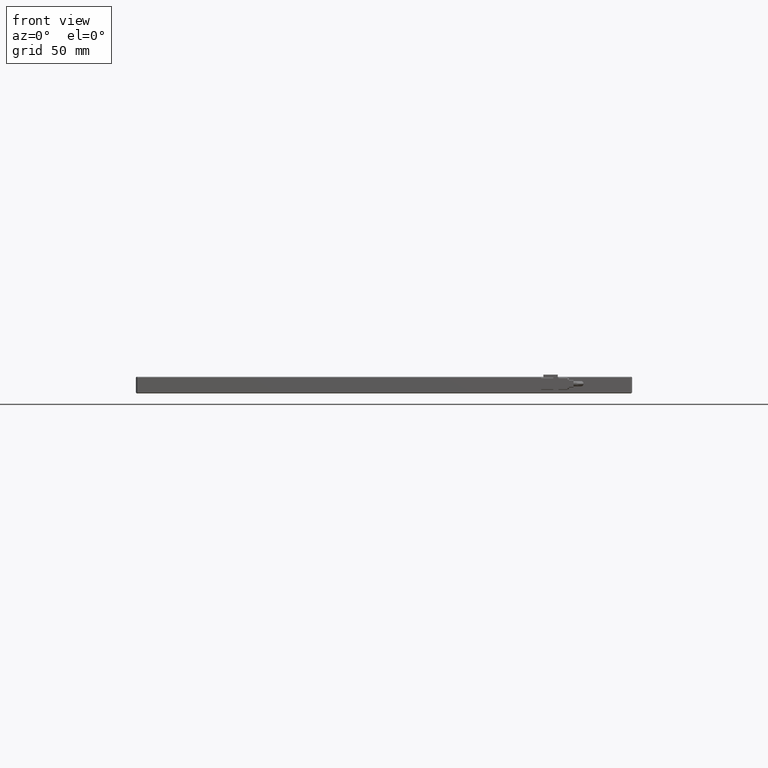
[diagram: clean part render]
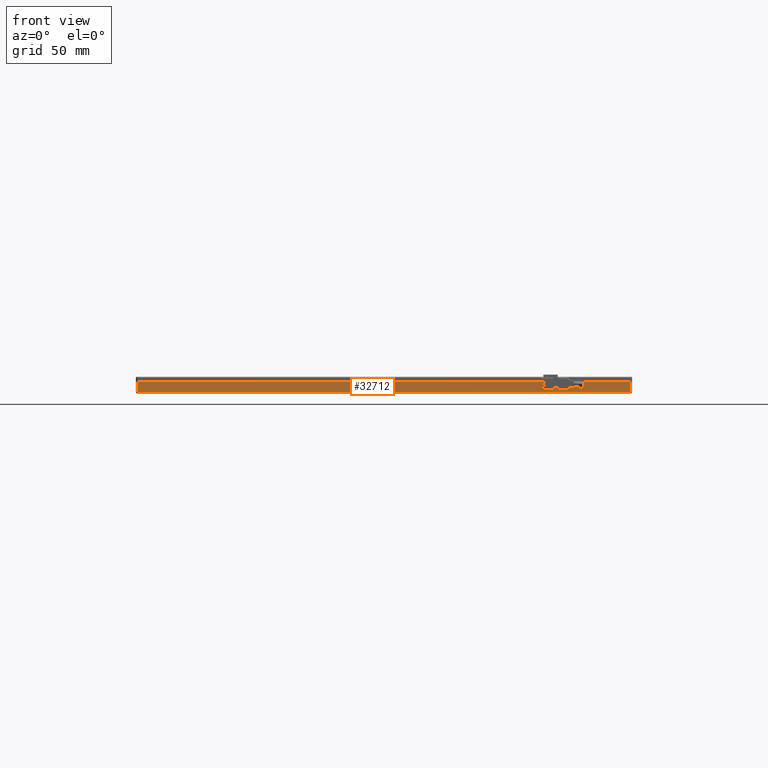
[diagram: same view with one face highlighted and labeled with its STEP entity id]
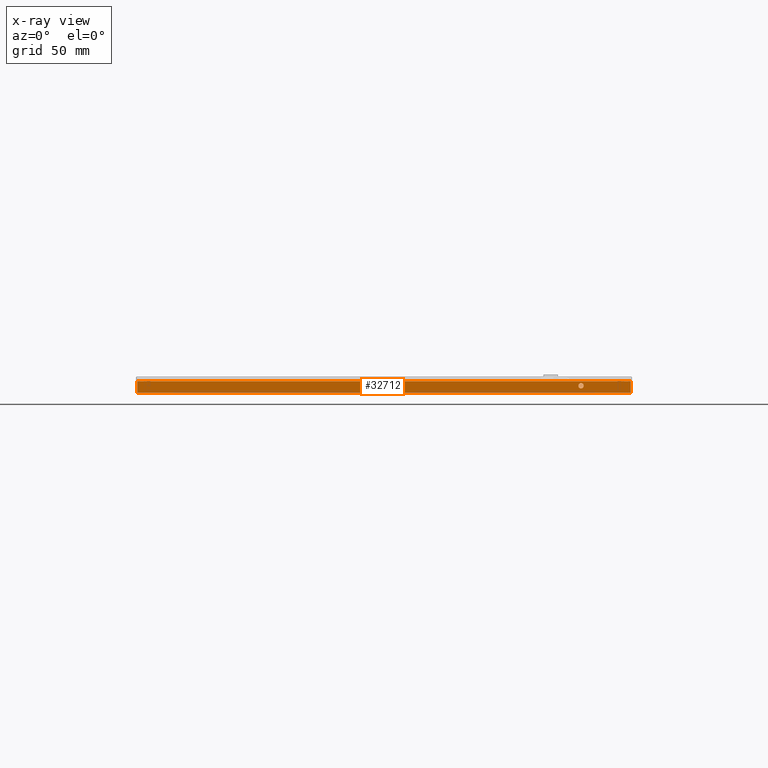
[diagram: x-ray of the same camera — body ghosted, the highlighted face saturated]
A machine part, front view. The second image highlights one B-rep face of the part: STEP entity #32712.
The next image is the same camera in x-ray: the body ghosted, the highlighted face saturated — about 0% of this face is hidden behind the body in this view.
In plain terms, the highlighted planar face has unit normal (-0, 1, 0).
Its self-contained STEP definition (entity closure, byte-faithful):
#433 = VERTEX_POINT ( 'NONE', #11530 ) ;
#558 = LINE ( 'NONE', #27201, #20692 ) ;
#1635 = EDGE_LOOP ( 'NONE', ( #18489, #8866 ) ) ;
#1890 = AXIS2_PLACEMENT_3D ( 'NONE', #24700, #16748, #22263 ) ;
#1991 = CARTESIAN_POINT ( 'NONE',  ( -196.2439076390645300, -100.6934259520940500, 8.000000000019099400 ) ) ;
#2116 = ORIENTED_EDGE ( 'NONE', *, *, #8430, .F. ) ;
#2137 = CARTESIAN_POINT ( 'NONE',  ( 132.7560923609355500, -100.6934259520940000, 0.5000000000190355500 ) ) ;
#2260 = LINE ( 'NONE', #16928, #29564 ) ;
#5137 = EDGE_CURVE ( 'NONE', #18800, #21229, #558, .T. ) ;
#5472 = VECTOR ( 'NONE', #25454, 1000.000000000000000 ) ;
#5660 = CARTESIAN_POINT ( 'NONE',  ( 132.7560923609354400, -100.6934259520940000, 8.000000000019099400 ) ) ;
#5761 = CARTESIAN_POINT ( 'NONE',  ( 132.7560923609354400, -100.6934259520940300, 8.000000000019099400 ) ) ;
#7914 = CARTESIAN_POINT ( 'NONE',  ( 99.75609236093552600, -100.6934259520940000, 3.250000000019124700 ) ) ;
#8430 = EDGE_CURVE ( 'NONE', #433, #14037, #31943, .T. ) ;
#8866 = ORIENTED_EDGE ( 'NONE', *, *, #13083, .F. ) ;
#9303 = DIRECTION ( 'NONE',  ( -0.0000000000000000000, -1.000000000000000000, -0.0000000000000000000 ) ) ;
#10389 = DIRECTION ( 'NONE',  ( -0.0000000000000000000, -0.0000000000000000000, -1.000000000000000000 ) ) ;
#11530 = CARTESIAN_POINT ( 'NONE',  ( -195.2439076390645600, -100.6934259520940500, 8.000000000019099400 ) ) ;
#13083 = EDGE_CURVE ( 'NONE', #14392, #13945, #26002, .T. ) ;
#13945 = VERTEX_POINT ( 'NONE', #7914 ) ;
#14037 = VERTEX_POINT ( 'NONE', #5761 ) ;
#14241 = AXIS2_PLACEMENT_3D ( 'NONE', #19410, #9303, #24231 ) ;
#14392 = VERTEX_POINT ( 'NONE', #19932 ) ;
#15059 = AXIS2_PLACEMENT_3D ( 'NONE', #1991, #15107, #27531 ) ;
#15107 = DIRECTION ( 'NONE',  ( -1.224646799147353200E-016, 1.000000000000000000, 0.0000000000000000000 ) ) ;
#15298 = EDGE_CURVE ( 'NONE', #13945, #14392, #29931, .T. ) ;
#16748 = DIRECTION ( 'NONE',  ( -0.0000000000000000000, -1.000000000000000000, -0.0000000000000000000 ) ) ;
#16928 = CARTESIAN_POINT ( 'NONE',  ( -195.2439076390645600, -100.6934259520940500, 8.000000000019099400 ) ) ;
#17087 = EDGE_CURVE ( 'NONE', #21229, #433, #2260, .T. ) ;
#18489 = ORIENTED_EDGE ( 'NONE', *, *, #15298, .F. ) ;
#18743 = CARTESIAN_POINT ( 'NONE',  ( -195.2439076390645600, -100.6934259520940500, 0.5000000000190389900 ) ) ;
#18800 = VERTEX_POINT ( 'NONE', #2137 ) ;
#19410 = CARTESIAN_POINT ( 'NONE',  ( 99.75609236093552600, -100.6934259520940000, 5.000000000019098500 ) ) ;
#19932 = CARTESIAN_POINT ( 'NONE',  ( 99.75609236093552600, -100.6934259520940000, 6.750000000019072700 ) ) ;
#19968 = PLANE ( 'NONE',  #15059 ) ;
#20692 = VECTOR ( 'NONE', #24658, 1000.000000000000000 ) ;
#21186 = ORIENTED_EDGE ( 'NONE', *, *, #21730, .F. ) ;
#21229 = VERTEX_POINT ( 'NONE', #18743 ) ;
#21730 = EDGE_CURVE ( 'NONE', #14037, #18800, #32620, .T. ) ;
#22263 = DIRECTION ( 'NONE',  ( 0.0000000000000000000, 0.0000000000000000000, -1.000000000000000000 ) ) ;
#22943 = ORIENTED_EDGE ( 'NONE', *, *, #17087, .F. ) ;
#23574 = EDGE_LOOP ( 'NONE', ( #29044, #21186, #2116, #22943 ) ) ;
#24231 = DIRECTION ( 'NONE',  ( 0.0000000000000000000, 0.0000000000000000000, -1.000000000000000000 ) ) ;
#24658 = DIRECTION ( 'NONE',  ( -1.000000000000000000, -6.123233995736764800E-017, -6.123233995736764800E-017 ) ) ;
#24700 = CARTESIAN_POINT ( 'NONE',  ( 99.75609236093552600, -100.6934259520940000, 5.000000000019098500 ) ) ;
#25454 = DIRECTION ( 'NONE',  ( 1.000000000000000000, 1.224646799147353200E-016, -0.0000000000000000000 ) ) ;
#25529 = FACE_BOUND ( 'NONE', #1635, .T. ) ;
#26002 = CIRCLE ( 'NONE', #1890, 1.749999999999973800 ) ;
#27201 = CARTESIAN_POINT ( 'NONE',  ( -196.2439076390645300, -100.6934259520940300, 0.5000000000190226700 ) ) ;
#27531 = DIRECTION ( 'NONE',  ( -1.000000000000000000, -1.224646799147353200E-016, 0.0000000000000000000 ) ) ;
#28121 = CARTESIAN_POINT ( 'NONE',  ( -196.2439076390645300, -100.6934259520940500, 8.000000000019099400 ) ) ;
#28731 = FACE_OUTER_BOUND ( 'NONE', #23574, .T. ) ;
#29044 = ORIENTED_EDGE ( 'NONE', *, *, #5137, .F. ) ;
#29564 = VECTOR ( 'NONE', #32005, 1000.000000000000000 ) ;
#29931 = CIRCLE ( 'NONE', #14241, 1.749999999999973800 ) ;
#30620 = VECTOR ( 'NONE', #10389, 1000.000000000000000 ) ;
#31943 = LINE ( 'NONE', #28121, #5472 ) ;
#32005 = DIRECTION ( 'NONE',  ( 0.0000000000000000000, 0.0000000000000000000, 1.000000000000000000 ) ) ;
#32620 = LINE ( 'NONE', #5660, #30620 ) ;
#32712 = ADVANCED_FACE ( 'NONE', ( #28731, #25529 ), #19968, .F. ) ;